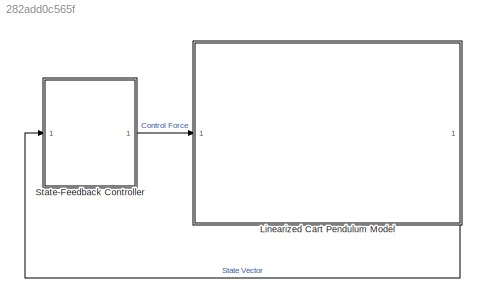
MODEL slx_282add0c565f
KIND model
CONFIG AbsTol = auto
CONFIG EnableMultiTasking = off
CONFIG FixedStep = T_s
CONFIG MaxStep = auto
CONFIG MinStep = auto
CONFIG RelTol = 1e-3
CONFIG SampleTimeConstraint = Unconstrained
CONFIG Solver = FixedStepDiscrete
CONFIG SolverName = FixedStepDiscrete
CONFIG StartTime = 0.0
CONFIG StopTime = 3
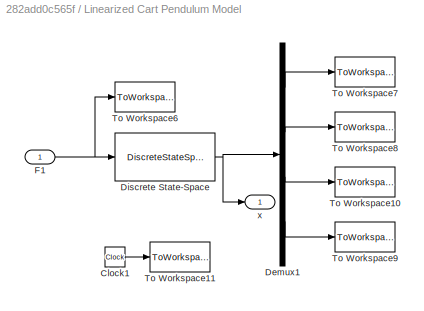
BLOCK [SubSystem] Linearized Cart Pendulum Model
  Ports = [1, 1]
  RequestExecContextInheritance = off
BLOCK [Clock] Linearized Cart Pendulum Model/Clock1
BLOCK [Demux] Linearized Cart Pendulum Model/Demux1
  DisplayOption = bar
  Ports = [1, 4]
BLOCK [DiscreteStateSpace] Linearized Cart Pendulum Model/Discrete State-Space
  A = sysdzoh.A
  B = sysdzoh.B
  C = sysdzoh.C
  D = sysdzoh.D
  InitialCondition = [x10;x20;x30;x40]
  SampleTime = T_s
BLOCK [Inport] Linearized Cart Pendulum Model/F1
  IconDisplay = Port number
BLOCK [ToWorkspace] Linearized Cart Pendulum Model/To Workspace10
  FixptAsFi = on
  MaxDataPoints = inf
  Ports = [1]
  SampleTime = -1
  Save2DSignal = 3-D array (concatenate along third dimension)
  VariableName = x3da
BLOCK [ToWorkspace] Linearized Cart Pendulum Model/To Workspace11
  FixptAsFi = on
  MaxDataPoints = inf
  Ports = [1]
  SampleTime = -1
  Save2DSignal = 3-D array (concatenate along third dimension)
  VariableName = tda
BLOCK [ToWorkspace] Linearized Cart Pendulum Model/To Workspace6
  FixptAsFi = on
  MaxDataPoints = inf
  Ports = [1]
  SampleTime = -1
  Save2DSignal = 3-D array (concatenate along third dimension)
  VariableName = Fda
BLOCK [ToWorkspace] Linearized Cart Pendulum Model/To Workspace7
  FixptAsFi = on
  MaxDataPoints = inf
  Ports = [1]
  SampleTime = -1
  Save2DSignal = 3-D array (concatenate along third dimension)
  VariableName = x1da
BLOCK [ToWorkspace] Linearized Cart Pendulum Model/To Workspace8
  FixptAsFi = on
  MaxDataPoints = inf
  Ports = [1]
  SampleTime = -1
  Save2DSignal = 3-D array (concatenate along third dimension)
  VariableName = x2da
BLOCK [ToWorkspace] Linearized Cart Pendulum Model/To Workspace9
  FixptAsFi = on
  MaxDataPoints = inf
  Ports = [1]
  SampleTime = -1
  Save2DSignal = 3-D array (concatenate along third dimension)
  VariableName = x4da
BLOCK [Outport] Linearized Cart Pendulum Model/x
  IconDisplay = Port number
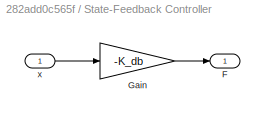
BLOCK [SubSystem] State-Feedback Controller
  Ports = [1, 1]
  RequestExecContextInheritance = off
BLOCK [Outport] State-Feedback Controller/F
  IconDisplay = Port number
BLOCK [Gain] State-Feedback Controller/Gain
  Gain = -K_db
  Multiplication = Matrix(K*u)
  OutDataTypeStr = Inherit: Inherit via internal rule
  ParamDataTypeStr = Inherit: Inherit via internal rule
  SaturateOnIntegerOverflow = off
BLOCK [Inport] State-Feedback Controller/x
  IconDisplay = Port number
LINE Linearized Cart Pendulum Model/Clock1:1 -> Linearized Cart Pendulum Model/To Workspace11:1
LINE Linearized Cart Pendulum Model/Demux1:1 -> Linearized Cart Pendulum Model/To Workspace7:1
LINE Linearized Cart Pendulum Model/Demux1:2 -> Linearized Cart Pendulum Model/To Workspace8:1
LINE Linearized Cart Pendulum Model/Demux1:3 -> Linearized Cart Pendulum Model/To Workspace10:1
LINE Linearized Cart Pendulum Model/Demux1:4 -> Linearized Cart Pendulum Model/To Workspace9:1
NET Linearized Cart Pendulum Model/Discrete State-Space:1 -> Linearized Cart Pendulum Model/Demux1:1, Linearized Cart Pendulum Model/x:1
NET Linearized Cart Pendulum Model/F1:1 -> Linearized Cart Pendulum Model/Discrete State-Space:1, Linearized Cart Pendulum Model/To Workspace6:1
LINE Linearized Cart Pendulum Model:1 -> State-Feedback Controller:1
LINE State-Feedback Controller/Gain:1 -> State-Feedback Controller/F:1
LINE State-Feedback Controller/x:1 -> State-Feedback Controller/Gain:1
LINE State-Feedback Controller:1 -> Linearized Cart Pendulum Model:1
note: NET lines group one-source signal fan-out (src -> all destinations, sorted); 1:1 wires keep LINE
